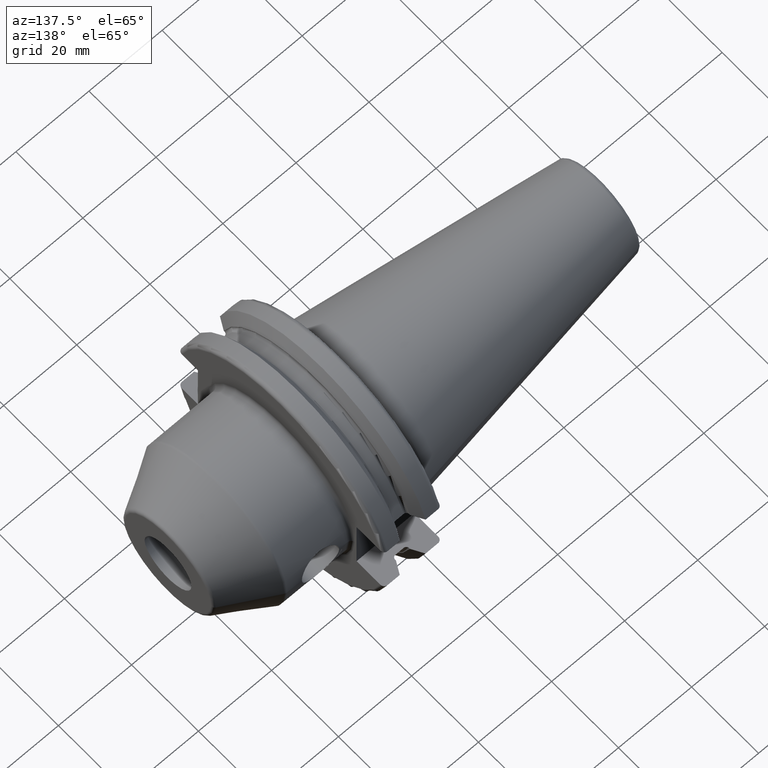
[diagram: clean part render]
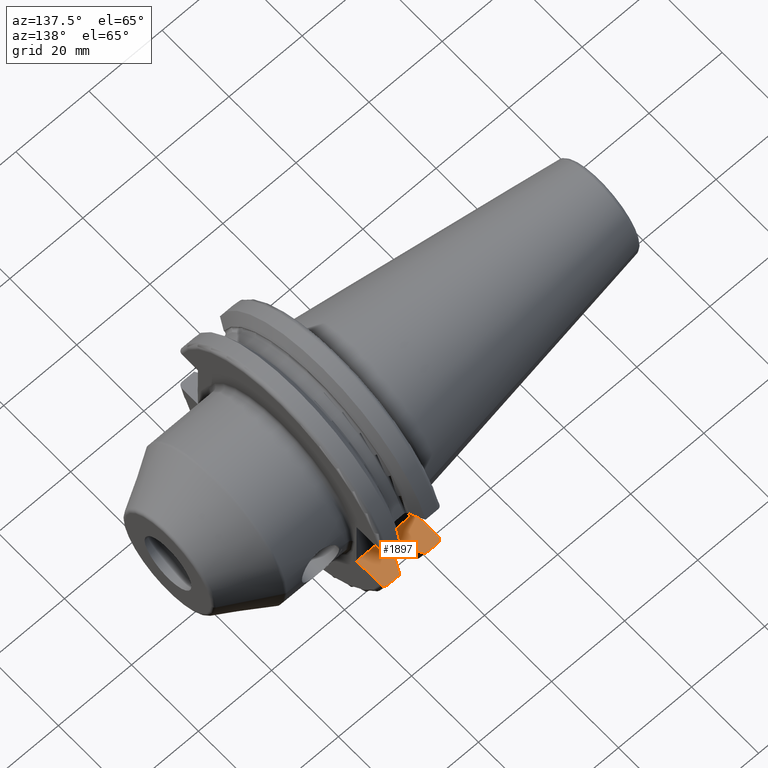
[diagram: same view with one face highlighted and labeled with its STEP entity id]
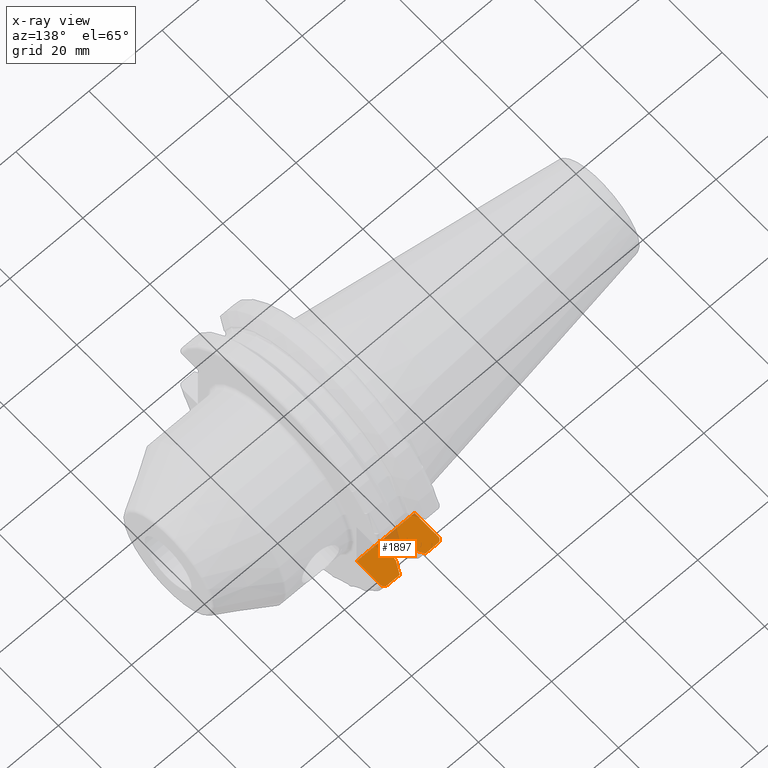
[diagram: x-ray of the same camera — body ghosted, the highlighted face saturated]
A machine part, auxiliary view. The second image highlights one B-rep face of the part: STEP entity #1897.
The next image is the same camera in x-ray: the body ghosted, the highlighted face saturated — about 12% of this face is hidden behind the body in this view.
In plain terms, the highlighted planar face has unit normal (0, 0, -1).
Its self-contained STEP definition (entity closure, byte-faithful):
#154=DIRECTION('',(0.E0,-1.E0,0.E0));
#155=VECTOR('',#154,7.126950757280E0);
#156=CARTESIAN_POINT('',(1.905E1,2.967695075728E1,-8.1E0));
#157=LINE('',#156,#155);
#172=CARTESIAN_POINT('',(1.805E1,3.071231684927E1,-8.1E0));
#173=CARTESIAN_POINT('',(1.812702529647E1,3.071231684927E1,-8.1E0));
#174=CARTESIAN_POINT('',(1.827656518037E1,3.069444719907E1,-8.1E0));
#175=CARTESIAN_POINT('',(1.849273698584E1,3.061544862934E1,-8.1E0));
#176=CARTESIAN_POINT('',(1.868460186607E1,3.048863686818E1,-8.1E0));
#177=CARTESIAN_POINT('',(1.884263679922E1,3.032251203229E1,-8.1E0));
#178=CARTESIAN_POINT('',(1.896052984725E1,3.012566774399E1,-8.1E0));
#179=CARTESIAN_POINT('',(1.903334281973E1,2.990707436768E1,-8.1E0));
#180=CARTESIAN_POINT('',(1.905E1,2.975515277820E1,-8.1E0));
#181=CARTESIAN_POINT('',(1.905E1,2.967695075728E1,-8.1E0));
#226=DIRECTION('',(-1.E0,0.E0,0.E0));
#227=VECTOR('',#226,1.585E1);
#228=CARTESIAN_POINT('',(1.905E1,2.255E1,-8.1E0));
#229=LINE('',#228,#227);
#243=DIRECTION('',(0.E0,-1.E0,0.E0));
#244=VECTOR('',#243,2.214507044446E-1);
#245=CARTESIAN_POINT('',(9.2625E0,2.780681820245E1,-8.1E0));
#246=LINE('',#245,#244);
#367=DIRECTION('',(0.E0,-1.E0,1.604290981016E-14));
#368=VECTOR('',#367,2.214507044446E-1);
#369=CARTESIAN_POINT('',(1.30875E1,2.780681820245E1,-8.1E0));
#370=LINE('',#369,#368);
#483=DIRECTION('',(0.E0,-1.E0,0.E0));
#484=VECTOR('',#483,7.126950757280E0);
#485=CARTESIAN_POINT('',(3.2E0,2.967695075728E1,-8.1E0));
#486=LINE('',#485,#484);
#535=CARTESIAN_POINT('',(3.2E0,2.967695075728E1,-8.1E0));
#536=CARTESIAN_POINT('',(3.2E0,2.975535829664E1,-8.1E0));
#537=CARTESIAN_POINT('',(3.216736704136E0,2.990767511790E1,-8.1E0));
#538=CARTESIAN_POINT('',(3.290003023403E0,3.012696803037E1,-8.1E0));
#539=CARTESIAN_POINT('',(3.408578685874E0,3.032415560769E1,-8.1E0));
#540=CARTESIAN_POINT('',(3.566974678455E0,3.048991705446E1,-8.1E0));
#541=CARTESIAN_POINT('',(3.758498450120E0,3.061600082070E1,-8.1E0));
#542=CARTESIAN_POINT('',(3.973995795704E0,3.069452712052E1,-8.1E0));
#543=CARTESIAN_POINT('',(4.123165215148E0,3.071231684927E1,-8.1E0));
#544=CARTESIAN_POINT('',(4.2E0,3.071231684927E1,-8.1E0));
#589=DIRECTION('',(1.E0,0.E0,0.E0));
#590=VECTOR('',#589,3.445946479578E0);
#591=CARTESIAN_POINT('',(4.2E0,3.071231684927E1,-8.1E0));
#592=LINE('',#591,#590);
#602=DIRECTION('',(1.E0,0.E0,0.E0));
#603=VECTOR('',#602,3.345946479578E0);
#604=CARTESIAN_POINT('',(1.470405352042E1,3.071231684927E1,-8.1E0));
#605=LINE('',#604,#603);
#651=CARTESIAN_POINT('',(9.2625E0,2.780681820245E1,-8.1E0));
#652=CARTESIAN_POINT('',(9.089138247115E0,2.811956968242E1,-8.1E0));
#653=CARTESIAN_POINT('',(8.738235514848E0,2.875178670793E1,-8.1E0));
#654=CARTESIAN_POINT('',(8.199445066245E0,2.972014324708E1,-8.1E0));
#655=CARTESIAN_POINT('',(7.831837395590E0,3.037933474515E1,-8.1E0));
#656=CARTESIAN_POINT('',(7.645946479578E0,3.071231684927E1,-8.1E0));
#683=CARTESIAN_POINT('',(1.30875E1,2.780681820245E1,-8.1E0));
#684=CARTESIAN_POINT('',(1.326086175289E1,2.811956968242E1,-8.1E0));
#685=CARTESIAN_POINT('',(1.361176448515E1,2.875178670793E1,-8.1E0));
#686=CARTESIAN_POINT('',(1.415055493375E1,2.972014324708E1,-8.1E0));
#687=CARTESIAN_POINT('',(1.451816260441E1,3.037933474515E1,-8.1E0));
#688=CARTESIAN_POINT('',(1.470405352042E1,3.071231684927E1,-8.1E0));
#721=CARTESIAN_POINT('',(1.23375E1,2.680279836137E1,-8.1E0));
#722=CARTESIAN_POINT('',(1.239562674305E1,2.680279836137E1,-8.1E0));
#723=CARTESIAN_POINT('',(1.250833850947E1,2.681647967473E1,-8.1E0));
#724=CARTESIAN_POINT('',(1.267115939476E1,2.687697033942E1,-8.1E0));
#725=CARTESIAN_POINT('',(1.281461158638E1,2.697320741180E1,-8.1E0));
#726=CARTESIAN_POINT('',(1.293266629249E1,2.709885742794E1,-8.1E0));
#727=CARTESIAN_POINT('',(1.302055059705E1,2.724712798877E1,-8.1E0));
#728=CARTESIAN_POINT('',(1.307501358899E1,2.741187526171E1,-8.1E0));
#729=CARTESIAN_POINT('',(1.30875E1,2.752640409084E1,-8.1E0));
#730=CARTESIAN_POINT('',(1.30875E1,2.758536749801E1,-8.1E0));
#775=DIRECTION('',(1.E0,0.E0,0.E0));
#776=VECTOR('',#775,2.325E0);
#777=CARTESIAN_POINT('',(1.00125E1,2.680279836137E1,-8.1E0));
#778=LINE('',#777,#776);
#801=CARTESIAN_POINT('',(9.2625E0,2.758536749801E1,-8.1E0));
#802=CARTESIAN_POINT('',(9.2625E0,2.752618761985E1,-8.1E0));
#803=CARTESIAN_POINT('',(9.275065021869E0,2.741125245771E1,-8.1E0));
#804=CARTESIAN_POINT('',(9.330017296387E0,2.724574966430E1,-8.1E0));
#805=CARTESIAN_POINT('',(9.418514302459E0,2.709725570567E1,-8.1E0));
#806=CARTESIAN_POINT('',(9.536940885437E0,2.697190991915E1,-8.1E0));
#807=CARTESIAN_POINT('',(9.680259770071E0,2.687630945530E1,-8.1E0));
#808=CARTESIAN_POINT('',(9.842325690080E0,2.681638482234E1,-8.1E0));
#809=CARTESIAN_POINT('',(9.954609318184E0,2.680279836137E1,-8.1E0));
#810=CARTESIAN_POINT('',(1.00125E1,2.680279836137E1,-8.1E0));
#1408=CARTESIAN_POINT('',(9.2625E0,2.780681820245E1,-8.1E0));
#1409=CARTESIAN_POINT('',(9.2625E0,2.758536749801E1,-8.1E0));
#1410=VERTEX_POINT('',#1408);
#1411=VERTEX_POINT('',#1409);
#1438=CARTESIAN_POINT('',(1.30875E1,2.780681820245E1,-8.1E0));
#1439=CARTESIAN_POINT('',(1.30875E1,2.758536749801E1,-8.1E0));
#1440=VERTEX_POINT('',#1438);
#1441=VERTEX_POINT('',#1439);
#1460=VERTEX_POINT('',#810);
#1462=CARTESIAN_POINT('',(1.23375E1,2.680279836137E1,-8.1E0));
#1463=VERTEX_POINT('',#1462);
#1466=VERTEX_POINT('',#688);
#1468=VERTEX_POINT('',#656);
#1474=CARTESIAN_POINT('',(1.905E1,2.255E1,-8.1E0));
#1475=VERTEX_POINT('',#1474);
#1476=CARTESIAN_POINT('',(1.905E1,2.967695075728E1,-8.1E0));
#1477=VERTEX_POINT('',#1476);
#1501=CARTESIAN_POINT('',(3.2E0,2.255E1,-8.1E0));
#1503=VERTEX_POINT('',#1501);
#1504=CARTESIAN_POINT('',(3.2E0,2.967695075728E1,-8.1E0));
#1505=VERTEX_POINT('',#1504);
#1514=CARTESIAN_POINT('',(4.2E0,3.071231684927E1,-8.1E0));
#1515=VERTEX_POINT('',#1514);
#1516=CARTESIAN_POINT('',(1.805E1,3.071231684927E1,-8.1E0));
#1517=VERTEX_POINT('',#1516);
#1865=CARTESIAN_POINT('',(1.905E1,2.255E1,-8.1E0));
#1866=DIRECTION('',(0.E0,0.E0,-1.E0));
#1867=DIRECTION('',(0.E0,1.E0,0.E0));
#1868=AXIS2_PLACEMENT_3D('',#1865,#1866,#1867);
#1869=PLANE('',#1868);
#1871=ORIENTED_EDGE('',*,*,#1870,.T.);
#1873=ORIENTED_EDGE('',*,*,#1872,.T.);
#1875=ORIENTED_EDGE('',*,*,#1874,.T.);
#1877=ORIENTED_EDGE('',*,*,#1876,.T.);
#1879=ORIENTED_EDGE('',*,*,#1878,.F.);
#1881=ORIENTED_EDGE('',*,*,#1880,.T.);
#1883=ORIENTED_EDGE('',*,*,#1882,.T.);
#1884=ORIENTED_EDGE('',*,*,#1841,.T.);
#1885=ORIENTED_EDGE('',*,*,#1788,.T.);
#1886=ORIENTED_EDGE('',*,*,#1759,.T.);
#1888=ORIENTED_EDGE('',*,*,#1887,.F.);
#1890=ORIENTED_EDGE('',*,*,#1889,.T.);
#1892=ORIENTED_EDGE('',*,*,#1891,.T.);
#1894=ORIENTED_EDGE('',*,*,#1893,.F.);
#1895=EDGE_LOOP('',(#1871,#1873,#1875,#1877,#1879,#1881,#1883,#1884,#1885,#1886,
#1888,#1890,#1892,#1894));
#1896=FACE_OUTER_BOUND('',#1895,.F.);
#1897=ADVANCED_FACE('',(#1896),#1869,.F.);
#182=B_SPLINE_CURVE_WITH_KNOTS('',3,(#172,#173,#174,#175,#176,#177,#178,#179,
#180,#181),.UNSPECIFIED.,.F.,.F.,(4,1,1,1,1,1,1,4),(0.E0,1.428571428571E-1,
2.857142857143E-1,4.285714285714E-1,5.714285714286E-1,7.142857142857E-1,
8.571428571429E-1,1.E0),.UNSPECIFIED.);
#545=B_SPLINE_CURVE_WITH_KNOTS('',3,(#535,#536,#537,#538,#539,#540,#541,#542,
#543,#544),.UNSPECIFIED.,.F.,.F.,(4,1,1,1,1,1,1,4),(0.E0,1.428571428571E-1,
2.857142857143E-1,4.285714285714E-1,5.714285714286E-1,7.142857142857E-1,
8.571428571429E-1,1.E0),.UNSPECIFIED.);
#657=B_SPLINE_CURVE_WITH_KNOTS('',3,(#651,#652,#653,#654,#655,#656),
.UNSPECIFIED.,.F.,.F.,(4,1,1,4),(0.E0,3.333333333333E-1,6.666666666667E-1,1.E0),
.UNSPECIFIED.);
#689=B_SPLINE_CURVE_WITH_KNOTS('',3,(#683,#684,#685,#686,#687,#688),
.UNSPECIFIED.,.F.,.F.,(4,1,1,4),(0.E0,3.333333333333E-1,6.666666666667E-1,1.E0),
.UNSPECIFIED.);
#731=B_SPLINE_CURVE_WITH_KNOTS('',3,(#721,#722,#723,#724,#725,#726,#727,#728,
#729,#730),.UNSPECIFIED.,.F.,.F.,(4,1,1,1,1,1,1,4),(0.E0,1.428571428571E-1,
2.857142857143E-1,4.285714285714E-1,5.714285714286E-1,7.142857142857E-1,
8.571428571429E-1,1.E0),.UNSPECIFIED.);
#811=B_SPLINE_CURVE_WITH_KNOTS('',3,(#801,#802,#803,#804,#805,#806,#807,#808,
#809,#810),.UNSPECIFIED.,.F.,.F.,(4,1,1,1,1,1,1,4),(0.E0,1.428571428571E-1,
2.857142857143E-1,4.285714285714E-1,5.714285714286E-1,7.142857142857E-1,
8.571428571429E-1,1.E0),.UNSPECIFIED.);
#1759=EDGE_CURVE('',#1475,#1503,#229,.T.);
#1788=EDGE_CURVE('',#1477,#1475,#157,.T.);
#1841=EDGE_CURVE('',#1517,#1477,#182,.T.);
#1870=EDGE_CURVE('',#1410,#1411,#246,.T.);
#1872=EDGE_CURVE('',#1411,#1460,#811,.T.);
#1874=EDGE_CURVE('',#1460,#1463,#778,.T.);
#1876=EDGE_CURVE('',#1463,#1441,#731,.T.);
#1878=EDGE_CURVE('',#1440,#1441,#370,.T.);
#1880=EDGE_CURVE('',#1440,#1466,#689,.T.);
#1882=EDGE_CURVE('',#1466,#1517,#605,.T.);
#1887=EDGE_CURVE('',#1505,#1503,#486,.T.);
#1889=EDGE_CURVE('',#1505,#1515,#545,.T.);
#1891=EDGE_CURVE('',#1515,#1468,#592,.T.);
#1893=EDGE_CURVE('',#1410,#1468,#657,.T.);